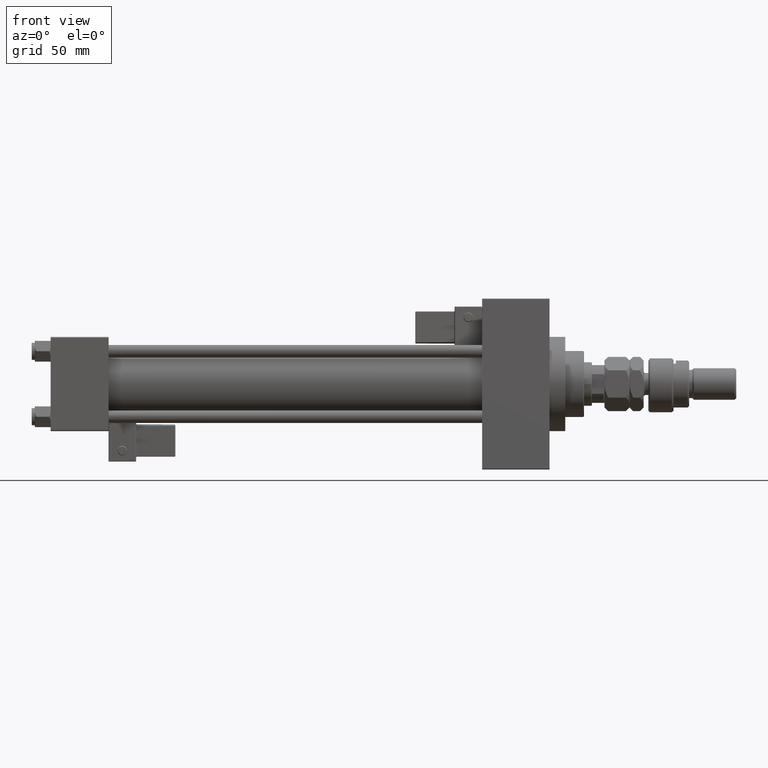
[diagram: clean part render]
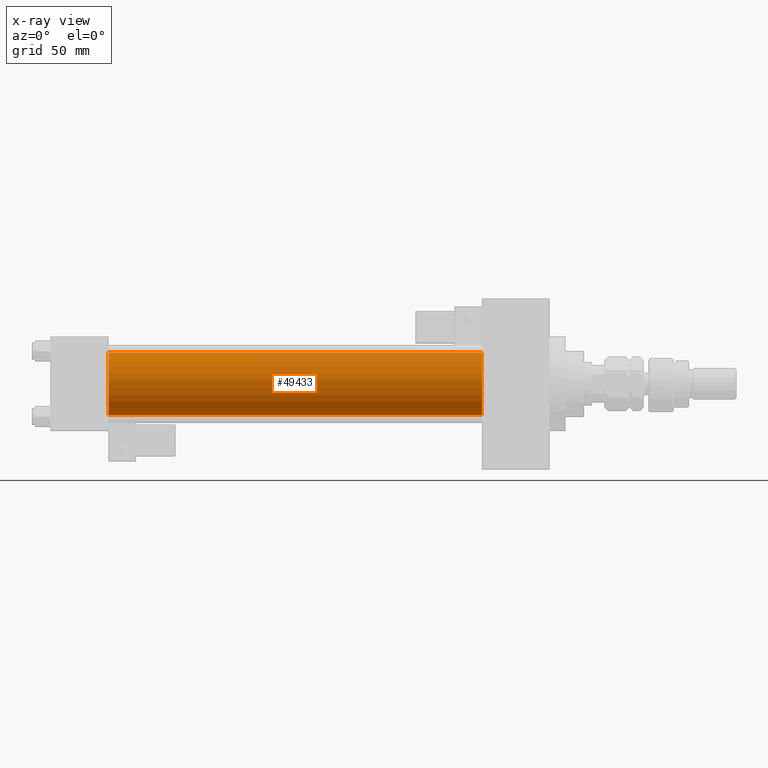
[diagram: x-ray — body ghosted, one internal face saturated and labeled with its STEP entity id]
A machine part, front view, then the same camera in x-ray: the body is ghosted and one INTERNAL B-rep face — a face not visible from any outside direction — is saturated and labeled: STEP entity #49433.
In plain terms, the highlighted cylindrical surface (edge-blend (fillet) strip) has radius 20 mm, axis along (-1, -0, -0).
Its self-contained STEP definition (entity closure, byte-faithful):
#373 = CARTESIAN_POINT ( 'NONE',  ( 37.00000000000000000, -1.527916156705042519E-16, -20.00000000000000000 ) ) ;
#680 = AXIS2_PLACEMENT_3D ( 'NONE', #40896, #44358, #24156 ) ;
#1251 = EDGE_CURVE ( 'NONE', #29083, #45552, #8796, .T. ) ;
#1527 = EDGE_CURVE ( 'NONE', #16543, #9800, #35842, .T. ) ;
#3581 = DIRECTION ( 'NONE',  ( 1.000000000000000000, 0.000000000000000000, 0.000000000000000000 ) ) ;
#3654 = CARTESIAN_POINT ( 'NONE',  ( 274.9999999999999432, -2.602085213965210642E-15, 0.000000000000000000 ) ) ;
#5136 = ORIENTED_EDGE ( 'NONE', *, *, #32723, .T. ) ;
#6920 = CARTESIAN_POINT ( 'NONE',  ( 274.9999999999999432, -1.527916156705042519E-16, -20.00000000000000000 ) ) ;
#7289 = CARTESIAN_POINT ( 'NONE',  ( 274.9999999999999432, -2.602085213965210642E-15, 20.00000000000000000 ) ) ;
#7675 = CYLINDRICAL_SURFACE ( 'NONE', #680, 20.00000000000000000 ) ;
#8107 = CARTESIAN_POINT ( 'NONE',  ( 37.00000000000000000, -2.602085213965210642E-15, 0.000000000000000000 ) ) ;
#8796 = CIRCLE ( 'NONE', #22286, 20.00000000000000000 ) ;
#8837 = VECTOR ( 'NONE', #34686, 1000.000000000000000 ) ;
#9800 = VERTEX_POINT ( 'NONE', #373 ) ;
#11639 = DIRECTION ( 'NONE',  ( 1.000000000000000000, 0.000000000000000000, 0.000000000000000000 ) ) ;
#14168 = DIRECTION ( 'NONE',  ( -1.000000000000000000, -0.000000000000000000, -0.000000000000000000 ) ) ;
#16543 = VERTEX_POINT ( 'NONE', #49537 ) ;
#18166 = LINE ( 'NONE', #34366, #23439 ) ;
#20015 = EDGE_LOOP ( 'NONE', ( #42557, #5136, #30723, #48328 ) ) ;
#22286 = AXIS2_PLACEMENT_3D ( 'NONE', #3654, #11639, #23607 ) ;
#22735 = LINE ( 'NONE', #7289, #8837 ) ;
#23439 = VECTOR ( 'NONE', #14168, 1000.000000000000000 ) ;
#23607 = DIRECTION ( 'NONE',  ( 0.000000000000000000, 0.000000000000000000, -1.000000000000000000 ) ) ;
#24156 = DIRECTION ( 'NONE',  ( 0.000000000000000000, 0.000000000000000000, 1.000000000000000000 ) ) ;
#24333 = DIRECTION ( 'NONE',  ( 0.000000000000000000, 0.000000000000000000, -1.000000000000000000 ) ) ;
#24578 = EDGE_CURVE ( 'NONE', #29083, #16543, #22735, .T. ) ;
#29083 = VERTEX_POINT ( 'NONE', #37755 ) ;
#30723 = ORIENTED_EDGE ( 'NONE', *, *, #1527, .F. ) ;
#32723 = EDGE_CURVE ( 'NONE', #45552, #9800, #18166, .T. ) ;
#34366 = CARTESIAN_POINT ( 'NONE',  ( 274.9999999999999432, -1.527916156705042519E-16, -20.00000000000000000 ) ) ;
#34686 = DIRECTION ( 'NONE',  ( -1.000000000000000000, -0.000000000000000000, -0.000000000000000000 ) ) ;
#35842 = CIRCLE ( 'NONE', #40951, 20.00000000000000000 ) ;
#37755 = CARTESIAN_POINT ( 'NONE',  ( 274.9999999999999432, -2.602085213965210642E-15, 20.00000000000000000 ) ) ;
#40896 = CARTESIAN_POINT ( 'NONE',  ( 274.9999999999999432, -2.602085213965210642E-15, 0.000000000000000000 ) ) ;
#40951 = AXIS2_PLACEMENT_3D ( 'NONE', #8107, #3581, #24333 ) ;
#42557 = ORIENTED_EDGE ( 'NONE', *, *, #1251, .T. ) ;
#44101 = FACE_OUTER_BOUND ( 'NONE', #20015, .T. ) ;
#44358 = DIRECTION ( 'NONE',  ( -1.000000000000000000, -0.000000000000000000, -0.000000000000000000 ) ) ;
#45552 = VERTEX_POINT ( 'NONE', #6920 ) ;
#48328 = ORIENTED_EDGE ( 'NONE', *, *, #24578, .F. ) ;
#49433 = ADVANCED_FACE ( 'NONE', ( #44101 ), #7675, .F. ) ;
#49537 = CARTESIAN_POINT ( 'NONE',  ( 37.00000000000000000, -2.602085213965210642E-15, 20.00000000000000000 ) ) ;